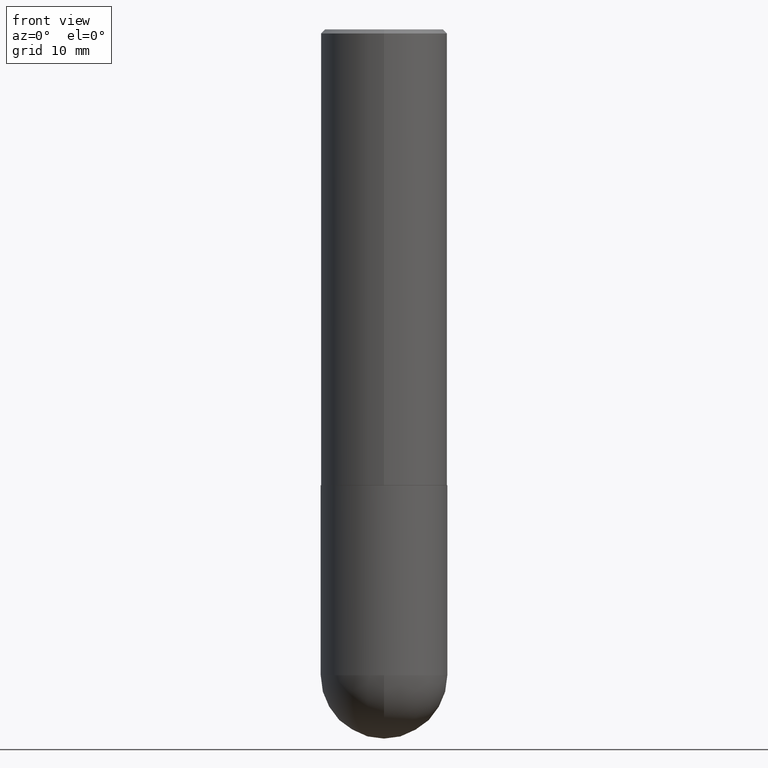
[diagram: clean part render]
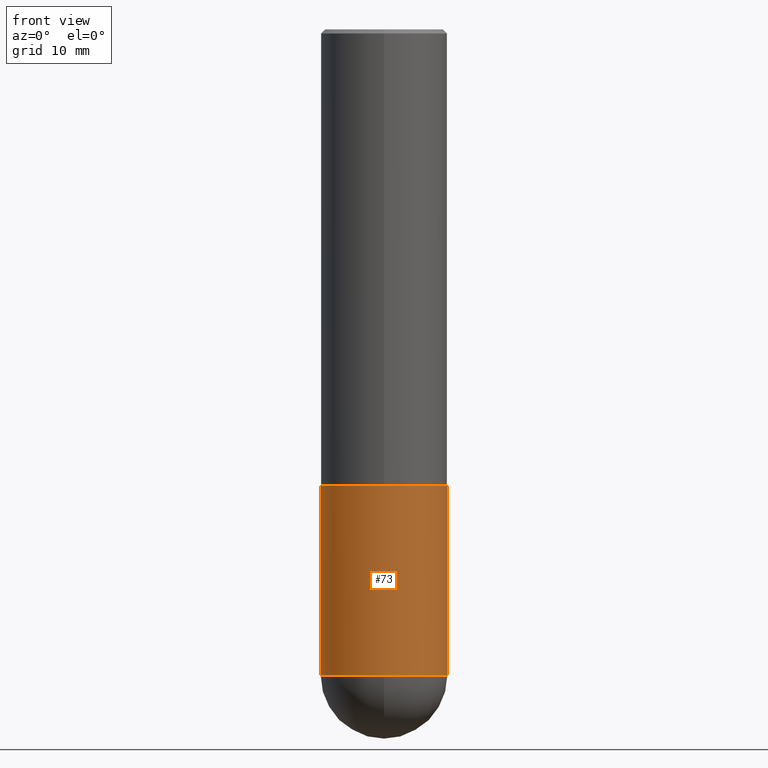
[diagram: same view with one face highlighted and labeled with its STEP entity id]
A machine part, front view. The second image highlights one B-rep face of the part: STEP entity #73.
In plain terms, the highlighted cylindrical surface (partial cylindrical patch) has radius 7.9375 mm, axis along (-0, 0, 1).
Its self-contained STEP definition (entity closure, byte-faithful):
#2 = AXIS2_PLACEMENT_3D ( 'NONE', #387, #322, #61 ) ;
#4 = LINE ( 'NONE', #8, #139 ) ;
#8 = CARTESIAN_POINT ( 'NONE',  ( -0.3125000000000000000, 2.220446049250313081E-15, -1.537167215704658232E-29 ) ) ;
#10 = AXIS2_PLACEMENT_3D ( 'NONE', #306, #308, #16 ) ;
#15 = AXIS2_PLACEMENT_3D ( 'NONE', #176, #298, #80 ) ;
#16 = DIRECTION ( 'NONE',  ( 1.000000000000000000, -6.982962677686269077E-15, 0.000000000000000000 ) ) ;
#17 = VERTEX_POINT ( 'NONE', #290 ) ;
#25 = CIRCLE ( 'NONE', #15, 0.3125000000000000000 ) ;
#28 = EDGE_CURVE ( 'NONE', #130, #406, #4, .T. ) ;
#33 = VERTEX_POINT ( 'NONE', #388 ) ;
#61 = DIRECTION ( 'NONE',  ( 1.000000000000000000, -6.982962677686269077E-15, 0.000000000000000000 ) ) ;
#62 = DIRECTION ( 'NONE',  ( -2.445468806185136877E-29, 3.491481338843145188E-15, 1.000000000000000000 ) ) ;
#66 = CIRCLE ( 'NONE', #2, 0.3125000000000000000 ) ;
#73 = ADVANCED_FACE ( 'NONE', ( #197 ), #231, .T. ) ;
#80 = DIRECTION ( 'NONE',  ( 1.000000000000000000, -6.982962677686269077E-15, 0.000000000000000000 ) ) ;
#97 = DIRECTION ( 'NONE',  ( 1.000000000000000000, -6.982962677686266711E-15, 4.876176775795936353E-29 ) ) ;
#102 = CARTESIAN_POINT ( 'NONE',  ( 0.000000000000000000, 0.000000000000000000, 0.000000000000000000 ) ) ;
#112 = EDGE_CURVE ( 'NONE', #17, #332, #193, .T. ) ;
#118 = CARTESIAN_POINT ( 'NONE',  ( 0.3125000000000000000, -1.003800884917403522E-14, -2.249999999999999556 ) ) ;
#130 = VERTEX_POINT ( 'NONE', #303 ) ;
#138 = ORIENTED_EDGE ( 'NONE', *, *, #398, .T. ) ;
#139 = VECTOR ( 'NONE', #62, 39.37007874015748143 ) ;
#152 = EDGE_CURVE ( 'NONE', #406, #332, #25, .T. ) ;
#162 = EDGE_CURVE ( 'NONE', #130, #33, #264, .T. ) ;
#176 = CARTESIAN_POINT ( 'NONE',  ( 5.502304813916556222E-29, -7.855833012397076871E-15, -2.249999999999999556 ) ) ;
#193 = LINE ( 'NONE', #319, #280 ) ;
#197 = FACE_OUTER_BOUND ( 'NONE', #400, .T. ) ;
#229 = DIRECTION ( 'NONE',  ( -2.445468806185136877E-29, 3.491481338843145188E-15, 1.000000000000000000 ) ) ;
#231 = CYLINDRICAL_SURFACE ( 'NONE', #359, 0.3125000000000000000 ) ;
#241 = ORIENTED_EDGE ( 'NONE', *, *, #28, .F. ) ;
#264 = CIRCLE ( 'NONE', #10, 0.3125000000000000000 ) ;
#280 = VECTOR ( 'NONE', #229, 39.37007874015748143 ) ;
#290 = CARTESIAN_POINT ( 'NONE',  ( 0.3125000000000000000, -1.167464072675676384E-14, -3.187500000000000000 ) ) ;
#298 = DIRECTION ( 'NONE',  ( -2.445468806185136597E-29, 3.491481338843145583E-15, 1.000000000000000000 ) ) ;
#303 = CARTESIAN_POINT ( 'NONE',  ( -0.3125000000000000000, -7.272018840729490833E-15, -3.187500000000000000 ) ) ;
#306 = CARTESIAN_POINT ( 'NONE',  ( 7.794931819715121781E-29, -1.112909676756252622E-14, -3.187500000000000000 ) ) ;
#308 = DIRECTION ( 'NONE',  ( -2.445468806185136597E-29, 3.491481338843145583E-15, 1.000000000000000000 ) ) ;
#316 = ORIENTED_EDGE ( 'NONE', *, *, #152, .F. ) ;
#319 = CARTESIAN_POINT ( 'NONE',  ( 0.3125000000000000000, -2.182175836776958347E-15, 1.523805242436230075E-29 ) ) ;
#322 = DIRECTION ( 'NONE',  ( -2.445468806185136597E-29, 3.491481338843145583E-15, 1.000000000000000000 ) ) ;
#323 = DIRECTION ( 'NONE',  ( -2.445468806185136597E-29, 3.491481338843145583E-15, 1.000000000000000000 ) ) ;
#332 = VERTEX_POINT ( 'NONE', #118 ) ;
#345 = ORIENTED_EDGE ( 'NONE', *, *, #112, .T. ) ;
#355 = ORIENTED_EDGE ( 'NONE', *, *, #162, .T. ) ;
#356 = CARTESIAN_POINT ( 'NONE',  ( -0.3125000000000000000, -7.272018840729487678E-15, -2.249999999999999556 ) ) ;
#359 = AXIS2_PLACEMENT_3D ( 'NONE', #102, #323, #97 ) ;
#387 = CARTESIAN_POINT ( 'NONE',  ( 7.794931819715121781E-29, -1.112909676756252622E-14, -3.187500000000000000 ) ) ;
#388 = CARTESIAN_POINT ( 'NONE',  ( -2.220446049250237350E-15, -0.3125000000000114908, -3.187499999999998668 ) ) ;
#398 = EDGE_CURVE ( 'NONE', #33, #17, #66, .T. ) ;
#400 = EDGE_LOOP ( 'NONE', ( #241, #355, #138, #345, #316 ) ) ;
#406 = VERTEX_POINT ( 'NONE', #356 ) ;